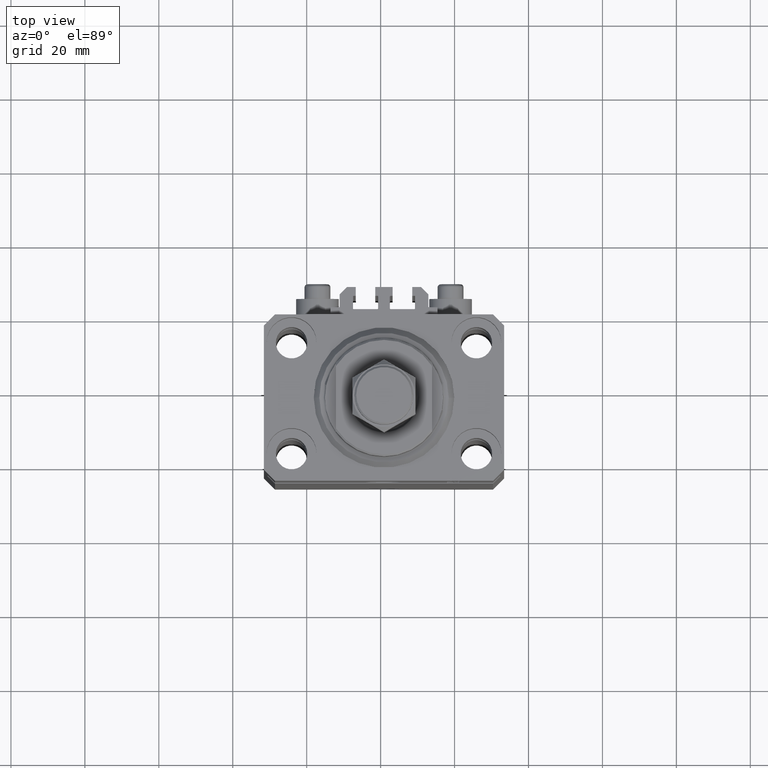
[diagram: clean part render]
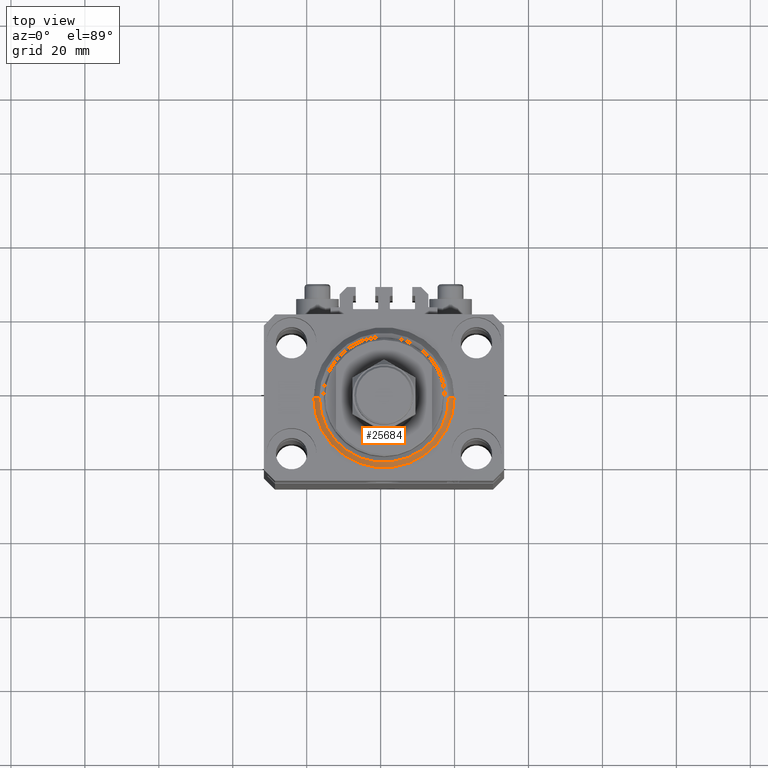
[diagram: same view with one face highlighted and labeled with its STEP entity id]
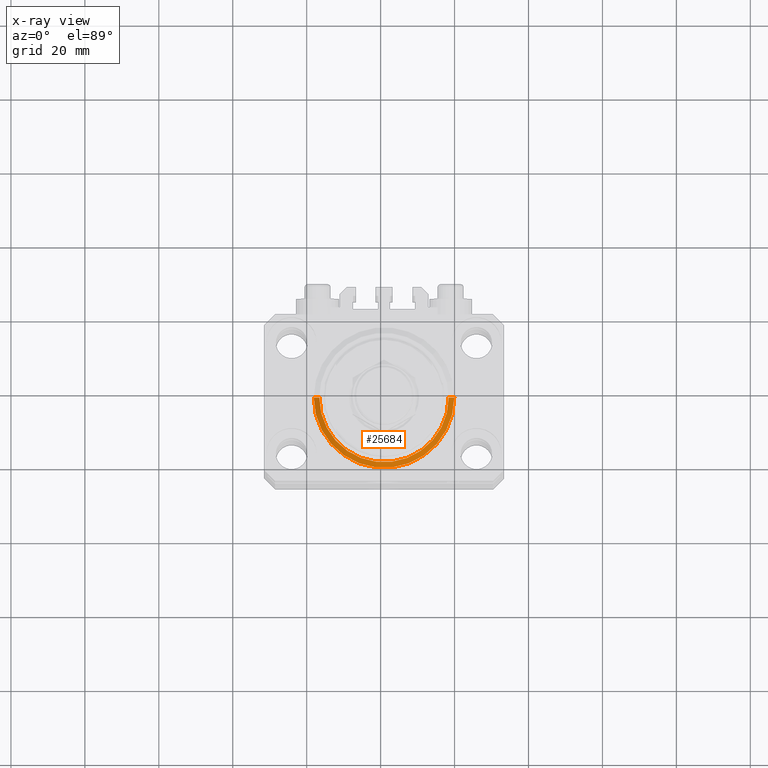
[diagram: x-ray of the same camera — body ghosted, the highlighted face saturated]
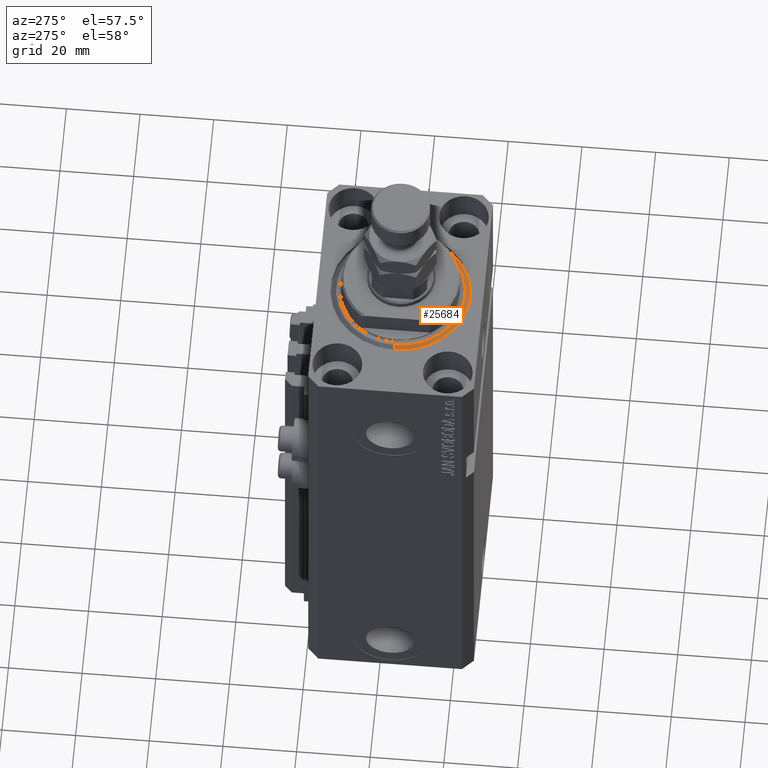
[diagram: same view with one face highlighted and labeled with its STEP entity id]
A machine part, top view. The second image highlights one B-rep face of the part: STEP entity #25684.
The next image is the same camera in x-ray: the body ghosted, the highlighted face saturated — about 0% of this face is hidden behind the body in this view.
A second angle (auxiliary view) of the same face is appended — the face is thin or edge-on in the first view.
In plain terms, the highlighted conical surface has half-angle 45 deg.
Its self-contained STEP definition (entity closure, byte-faithful):
#3645 = ORIENTED_EDGE ( 'NONE', *, *, #33663, .T. ) ;
#4142 = ORIENTED_EDGE ( 'NONE', *, *, #26736, .F. ) ;
#4933 = VERTEX_POINT ( 'NONE', #43886 ) ;
#5437 = DIRECTION ( 'NONE',  ( -0.000000000000000000, -0.000000000000000000, 1.000000000000000000 ) ) ;
#8054 = CARTESIAN_POINT ( 'NONE',  ( 0.000000000000000000, 0.000000000000000000, 0.000000000000000000 ) ) ;
#10163 = AXIS2_PLACEMENT_3D ( 'NONE', #37250, #34037, #33561 ) ;
#10617 = DIRECTION ( 'NONE',  ( -0.000000000000000000, -0.000000000000000000, -1.000000000000000000 ) ) ;
#11522 = DIRECTION ( 'NONE',  ( 1.000000000000000000, 0.000000000000000000, 0.000000000000000000 ) ) ;
#13853 = EDGE_CURVE ( 'NONE', #40167, #47998, #42073, .T. ) ;
#13903 = EDGE_CURVE ( 'NONE', #4933, #42305, #20072, .T. ) ;
#14763 = CARTESIAN_POINT ( 'NONE',  ( -19.00000000000000000, 2.326828918379970970E-15, 1.500000000000001332 ) ) ;
#20072 = CIRCLE ( 'NONE', #29476, 17.49999999999999645 ) ;
#20391 = CARTESIAN_POINT ( 'NONE',  ( 19.00000000000000000, 0.000000000000000000, 1.500000000000001332 ) ) ;
#21984 = FACE_OUTER_BOUND ( 'NONE', #44369, .T. ) ;
#24752 = CARTESIAN_POINT ( 'NONE',  ( 19.00000000000000000, 2.326828918379970970E-15, 1.500000000000001332 ) ) ;
#24791 = DIRECTION ( 'NONE',  ( 0.7071067811865483499, 0.000000000000000000, 0.7071067811865467956 ) ) ;
#25684 = ADVANCED_FACE ( 'NONE', ( #21984 ), #31450, .T. ) ;
#26736 = EDGE_CURVE ( 'NONE', #42305, #40167, #48781, .T. ) ;
#27548 = VECTOR ( 'NONE', #24791, 1000.000000000000000 ) ;
#27572 = ORIENTED_EDGE ( 'NONE', *, *, #13853, .F. ) ;
#29476 = AXIS2_PLACEMENT_3D ( 'NONE', #8054, #10617, #11522 ) ;
#31450 = CONICAL_SURFACE ( 'NONE', #10163, 19.00000000000000000, 0.7853981633974492782 ) ;
#32099 = CARTESIAN_POINT ( 'NONE',  ( 0.000000000000000000, 0.000000000000000000, 1.500000000000001332 ) ) ;
#33561 = DIRECTION ( 'NONE',  ( 1.000000000000000000, 0.000000000000000000, 0.000000000000000000 ) ) ;
#33663 = EDGE_CURVE ( 'NONE', #4933, #47998, #43517, .T. ) ;
#34037 = DIRECTION ( 'NONE',  ( -0.000000000000000000, -0.000000000000000000, 1.000000000000000000 ) ) ;
#37250 = CARTESIAN_POINT ( 'NONE',  ( 0.000000000000000000, 0.000000000000000000, 1.500000000000001332 ) ) ;
#40167 = VERTEX_POINT ( 'NONE', #42303 ) ;
#40898 = DIRECTION ( 'NONE',  ( -0.7071067811865483499, 8.659560562354942719E-17, 0.7071067811865467956 ) ) ;
#42073 = CIRCLE ( 'NONE', #44437, 19.00000000000000000 ) ;
#42303 = CARTESIAN_POINT ( 'NONE',  ( -19.00000000000000000, 0.000000000000000000, 1.500000000000001332 ) ) ;
#42305 = VERTEX_POINT ( 'NONE', #42809 ) ;
#42809 = CARTESIAN_POINT ( 'NONE',  ( -17.49999999999999645, 2.234980408443919215E-15, 0.000000000000000000 ) ) ;
#42949 = DIRECTION ( 'NONE',  ( 1.000000000000000000, 0.000000000000000000, 0.000000000000000000 ) ) ;
#43517 = LINE ( 'NONE', #20391, #27548 ) ;
#43886 = CARTESIAN_POINT ( 'NONE',  ( 17.49999999999999645, 0.000000000000000000, 0.000000000000000000 ) ) ;
#44067 = VECTOR ( 'NONE', #40898, 1000.000000000000000 ) ;
#44369 = EDGE_LOOP ( 'NONE', ( #4142, #45190, #3645, #27572 ) ) ;
#44437 = AXIS2_PLACEMENT_3D ( 'NONE', #32099, #5437, #42949 ) ;
#45190 = ORIENTED_EDGE ( 'NONE', *, *, #13903, .F. ) ;
#47998 = VERTEX_POINT ( 'NONE', #24752 ) ;
#48781 = LINE ( 'NONE', #14763, #44067 ) ;